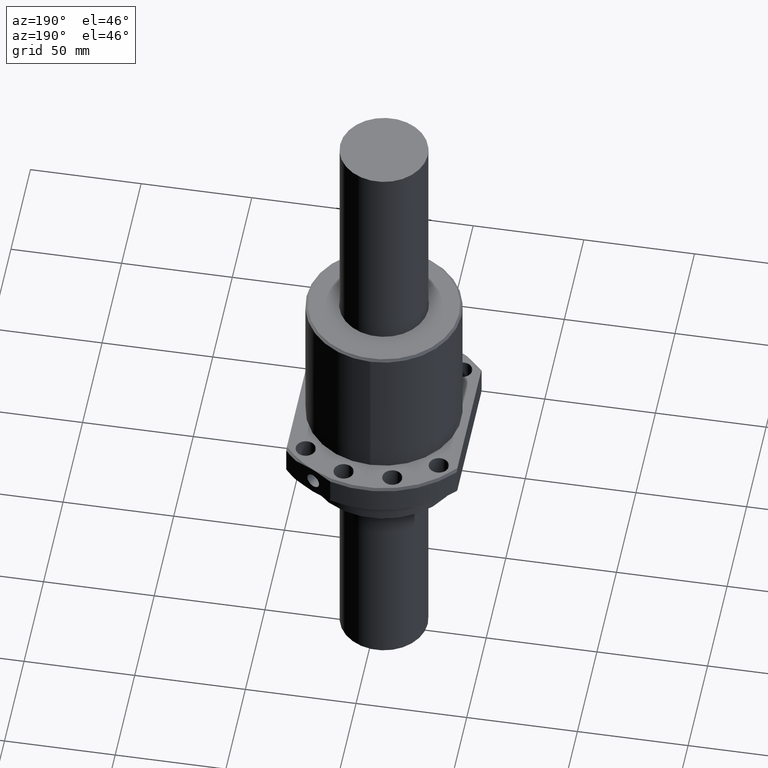
[diagram: clean part render]
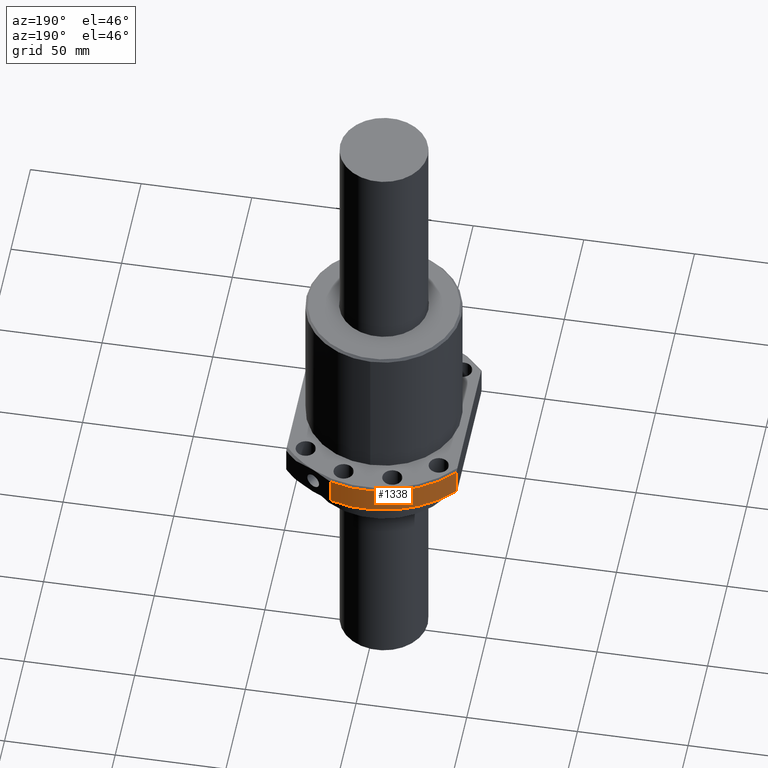
[diagram: same view with one face highlighted and labeled with its STEP entity id]
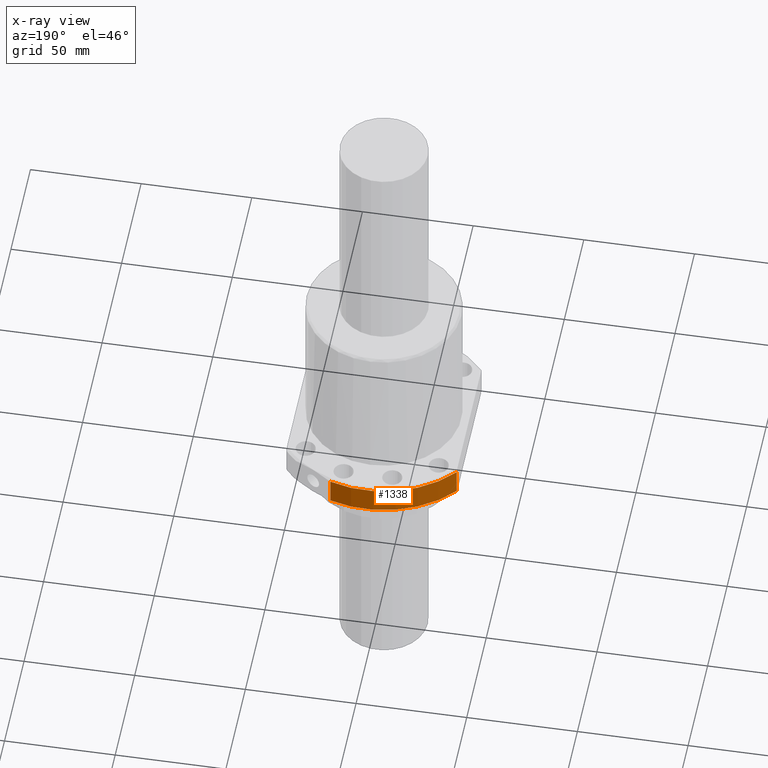
[diagram: x-ray of the same camera — body ghosted, the highlighted face saturated]
A machine part, auxiliary view. The second image highlights one B-rep face of the part: STEP entity #1338.
The next image is the same camera in x-ray: the body ghosted, the highlighted face saturated — about 0% of this face is hidden behind the body in this view.
In plain terms, the highlighted cylindrical surface (partial cylindrical patch) has radius 50 mm, axis along (0, 0, -1).
Its self-contained STEP definition (entity closure, byte-faithful):
#192 = DIRECTION ( 'NONE',  ( -0.0000000000000000000, -0.0000000000000000000, -1.000000000000000000 ) ) ;
#194 = CARTESIAN_POINT ( 'NONE',  ( -15.88315328300000200, 47.41018355699998900, -27.99999999999999600 ) ) ;
#204 = LINE ( 'NONE', #194, #1180 ) ;
#244 = CIRCLE ( 'NONE', #741, 50.00000000000000000 ) ;
#293 = EDGE_CURVE ( 'NONE', #1353, #1975, #244, .T. ) ;
#454 = CARTESIAN_POINT ( 'NONE',  ( -15.88315465646609000, 47.41018276402898100, -33.99999968440147300 ) ) ;
#477 = DIRECTION ( 'NONE',  ( 1.000000000000000000, 0.0000000000000000000, 0.0000000000000000000 ) ) ;
#479 = DIRECTION ( 'NONE',  ( 0.0000000000000000000, -0.0000000000000000000, 1.000000000000000000 ) ) ;
#493 = AXIS2_PLACEMENT_3D ( 'NONE', #632, #624, #621 ) ;
#494 = CARTESIAN_POINT ( 'NONE',  ( 0.0000000000000000000, 0.0000000000000000000, -34.00000000000000000 ) ) ;
#571 = DIRECTION ( 'NONE',  ( 0.0000000000000000000, 0.0000000000000000000, 1.000000000000000000 ) ) ;
#578 = CARTESIAN_POINT ( 'NONE',  ( 38.50000654397880600, 31.90218638453467300, -28.00000031550000300 ) ) ;
#581 = LINE ( 'NONE', #578, #924 ) ;
#621 = DIRECTION ( 'NONE',  ( 1.000000000000000000, 0.0000000000000000000, 0.0000000000000000000 ) ) ;
#624 = DIRECTION ( 'NONE',  ( 0.0000000000000000000, 0.0000000000000000000, 1.000000000000000000 ) ) ;
#632 = CARTESIAN_POINT ( 'NONE',  ( 0.0000000000000000000, 0.0000000000000000000, -22.00000063100000200 ) ) ;
#741 = AXIS2_PLACEMENT_3D ( 'NONE', #1664, #1659, #1655 ) ;
#902 = CARTESIAN_POINT ( 'NONE',  ( -15.88315329628698800, 47.41018354932874200, -22.00000062804540900 ) ) ;
#924 = VECTOR ( 'NONE', #571, 1000.000000000000000 ) ;
#994 = VERTEX_POINT ( 'NONE', #902 ) ;
#1163 = EDGE_LOOP ( 'NONE', ( #1481, #1593, #1326, #1911 ) ) ;
#1180 = VECTOR ( 'NONE', #192, 1000.000000000000000 ) ;
#1229 = EDGE_CURVE ( 'NONE', #1977, #994, #1607, .T. ) ;
#1246 = EDGE_CURVE ( 'NONE', #1975, #1977, #581, .T. ) ;
#1326 = ORIENTED_EDGE ( 'NONE', *, *, #1229, .F. ) ;
#1338 = ADVANCED_FACE ( 'NONE', ( #1617 ), #1516, .T. ) ;
#1353 = VERTEX_POINT ( 'NONE', #454 ) ;
#1368 = AXIS2_PLACEMENT_3D ( 'NONE', #494, #479, #477 ) ;
#1413 = CARTESIAN_POINT ( 'NONE',  ( 38.50000679248939400, 31.90218651018611600, -22.00000058702431400 ) ) ;
#1424 = CARTESIAN_POINT ( 'NONE',  ( 38.50000679248939400, 31.90218631197631200, -33.99999985494221700 ) ) ;
#1481 = ORIENTED_EDGE ( 'NONE', *, *, #293, .F. ) ;
#1516 = CYLINDRICAL_SURFACE ( 'NONE', #1368, 50.00000000000000000 ) ;
#1529 = EDGE_CURVE ( 'NONE', #994, #1353, #204, .T. ) ;
#1593 = ORIENTED_EDGE ( 'NONE', *, *, #1529, .F. ) ;
#1607 = CIRCLE ( 'NONE', #493, 50.00000000000000000 ) ;
#1617 = FACE_OUTER_BOUND ( 'NONE', #1163, .T. ) ;
#1655 = DIRECTION ( 'NONE',  ( 1.000000000000000000, 1.776356839400250500E-015, 0.0000000000000000000 ) ) ;
#1659 = DIRECTION ( 'NONE',  ( -0.0000000000000000000, -0.0000000000000000000, -1.000000000000000000 ) ) ;
#1664 = CARTESIAN_POINT ( 'NONE',  ( 0.0000000000000000000, 0.0000000000000000000, -34.00000000000000000 ) ) ;
#1911 = ORIENTED_EDGE ( 'NONE', *, *, #1246, .F. ) ;
#1975 = VERTEX_POINT ( 'NONE', #1424 ) ;
#1977 = VERTEX_POINT ( 'NONE', #1413 ) ;